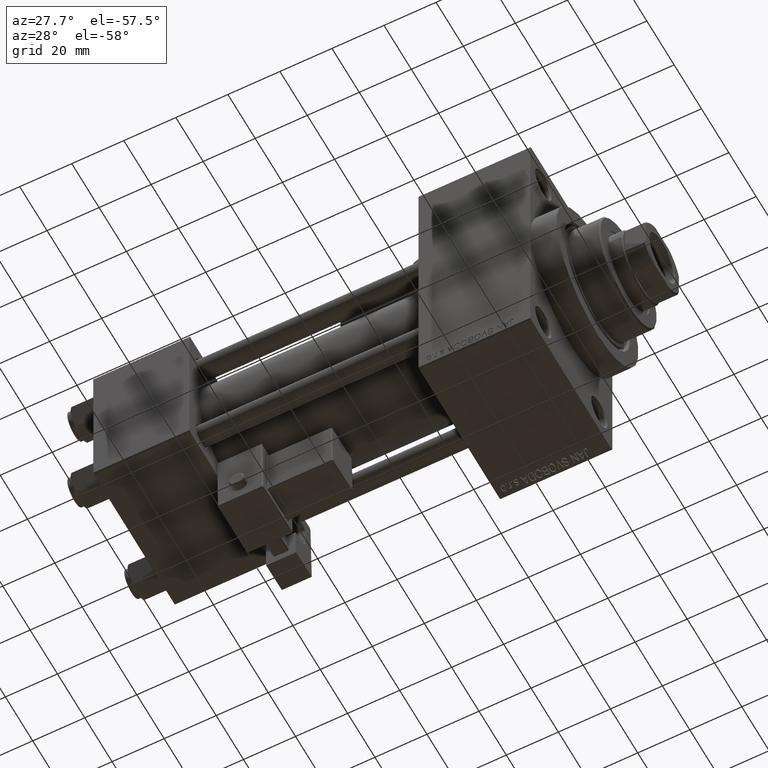
[diagram: clean part render]
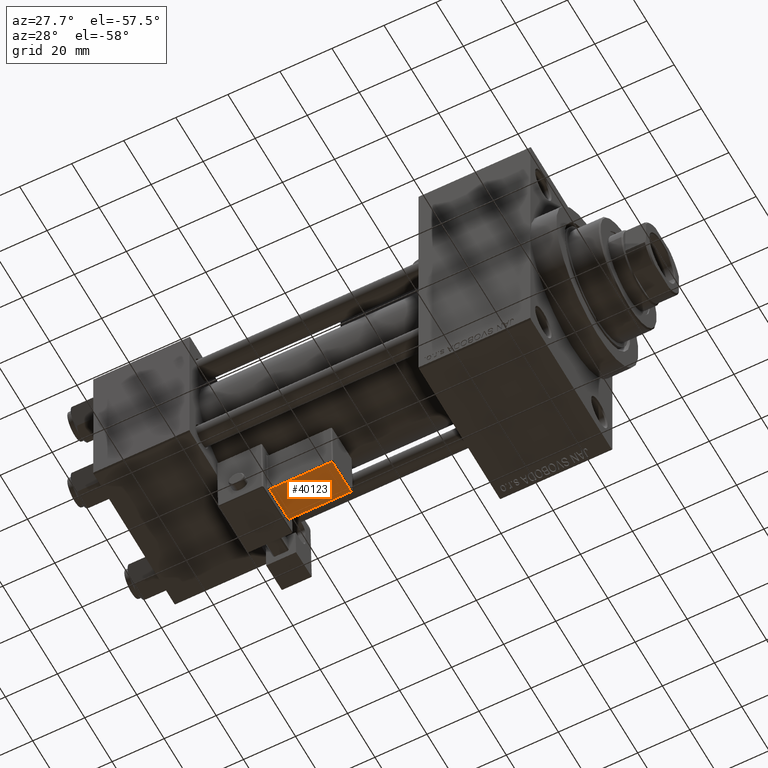
[diagram: same view with one face highlighted and labeled with its STEP entity id]
A machine part, auxiliary view. The second image highlights one B-rep face of the part: STEP entity #40123.
In plain terms, the highlighted planar face has unit normal (-0, -0.0353, 0.9994).
Its self-contained STEP definition (entity closure, byte-faithful):
#943 = DIRECTION ( 'NONE',  ( 1.000000000000000000, -0.000000000000000000, 1.334402673828313339E-16 ) ) ;
#3231 = CARTESIAN_POINT ( 'NONE',  ( 33.25000000000000000, -17.74999999999999645, 2.000000000000010214 ) ) ;
#9191 = VECTOR ( 'NONE', #36635, 1000.000000000000000 ) ;
#9980 = LINE ( 'NONE', #44913, #9191 ) ;
#10617 = ORIENTED_EDGE ( 'NONE', *, *, #28428, .T. ) ;
#11742 = CARTESIAN_POINT ( 'NONE',  ( 33.25000000000000000, -32.24999999999999289, 2.000000000000008438 ) ) ;
#12396 = EDGE_CURVE ( 'NONE', #40544, #48952, #20059, .T. ) ;
#12975 = CARTESIAN_POINT ( 'NONE',  ( 9.250000000000005329, -31.74999999999999289, 2.000000000000005329 ) ) ;
#13542 = EDGE_CURVE ( 'NONE', #45358, #40544, #9980, .T. ) ;
#13727 = ORIENTED_EDGE ( 'NONE', *, *, #12396, .T. ) ;
#15755 = LINE ( 'NONE', #11742, #49029 ) ;
#17882 = DIRECTION ( 'NONE',  ( -1.334402673828313339E-16, -1.156482317317871725E-16, 1.000000000000000000 ) ) ;
#20059 = LINE ( 'NONE', #31860, #21302 ) ;
#21147 = FACE_OUTER_BOUND ( 'NONE', #44387, .T. ) ;
#21302 = VECTOR ( 'NONE', #943, 1000.000000000000000 ) ;
#21402 = PLANE ( 'NONE',  #33311 ) ;
#26608 = VERTEX_POINT ( 'NONE', #43904 ) ;
#28428 = EDGE_CURVE ( 'NONE', #26608, #45358, #39660, .T. ) ;
#29841 = EDGE_CURVE ( 'NONE', #48952, #26608, #15755, .T. ) ;
#31087 = DIRECTION ( 'NONE',  ( 5.473822126268816683E-48, -1.000000000000000000, -1.156482317317871725E-16 ) ) ;
#31860 = CARTESIAN_POINT ( 'NONE',  ( 33.75000000000000000, -17.74999999999999645, 2.000000000000010214 ) ) ;
#32371 = ORIENTED_EDGE ( 'NONE', *, *, #29841, .T. ) ;
#32954 = CARTESIAN_POINT ( 'NONE',  ( 33.75000000000000000, -17.24999999999999289, 2.000000000000010214 ) ) ;
#33311 = AXIS2_PLACEMENT_3D ( 'NONE', #32954, #17882, #44757 ) ;
#36635 = DIRECTION ( 'NONE',  ( -1.543213096464132036E-32, 1.000000000000000000, 1.156482317317871725E-16 ) ) ;
#37402 = CARTESIAN_POINT ( 'NONE',  ( 9.250000000000005329, -17.74999999999999645, 2.000000000000006661 ) ) ;
#37712 = VECTOR ( 'NONE', #39905, 1000.000000000000000 ) ;
#39660 = LINE ( 'NONE', #40153, #37712 ) ;
#39905 = DIRECTION ( 'NONE',  ( -1.000000000000000000, 0.000000000000000000, -1.334402673828313339E-16 ) ) ;
#40123 = ADVANCED_FACE ( 'NONE', ( #21147 ), #21402, .F. ) ;
#40153 = CARTESIAN_POINT ( 'NONE',  ( 33.75000000000000000, -31.74999999999999289, 2.000000000000008438 ) ) ;
#40544 = VERTEX_POINT ( 'NONE', #37402 ) ;
#43904 = CARTESIAN_POINT ( 'NONE',  ( 33.25000000000000000, -31.74999999999999289, 2.000000000000008438 ) ) ;
#44387 = EDGE_LOOP ( 'NONE', ( #32371, #10617, #45290, #13727 ) ) ;
#44757 = DIRECTION ( 'NONE',  ( 1.000000000000000000, 0.000000000000000000, 1.334402673828313339E-16 ) ) ;
#44913 = CARTESIAN_POINT ( 'NONE',  ( 9.250000000000005329, -17.24999999999999289, 2.000000000000007105 ) ) ;
#45290 = ORIENTED_EDGE ( 'NONE', *, *, #13542, .T. ) ;
#45358 = VERTEX_POINT ( 'NONE', #12975 ) ;
#48952 = VERTEX_POINT ( 'NONE', #3231 ) ;
#49029 = VECTOR ( 'NONE', #31087, 1000.000000000000000 ) ;